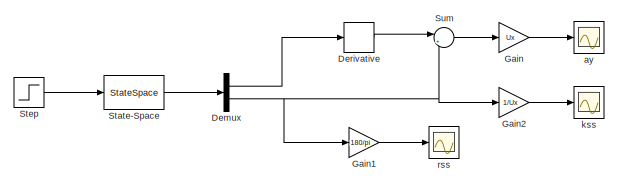
[diagram: root canvas - part 1/5, top left region]
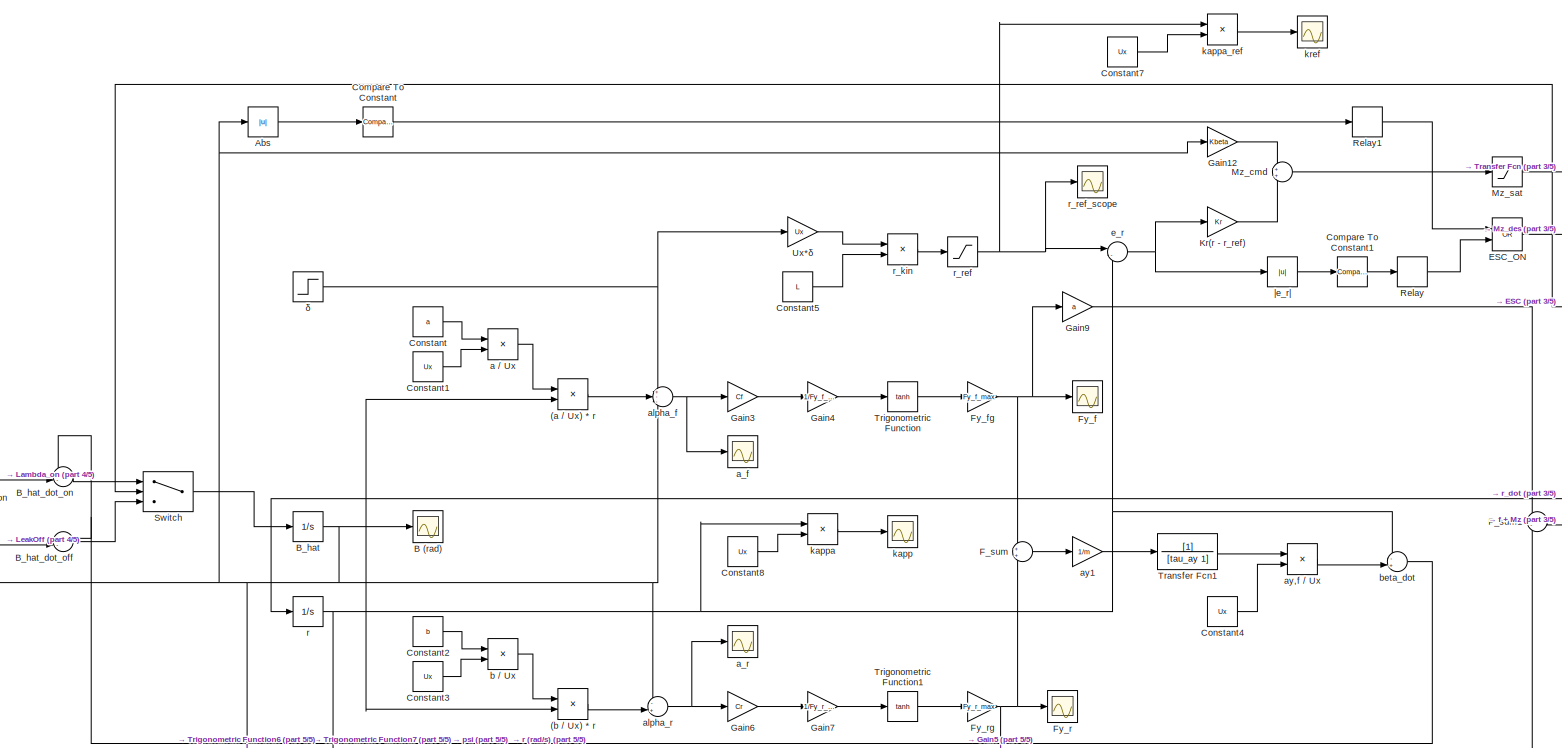
[diagram: root canvas - part 2/5, central region]
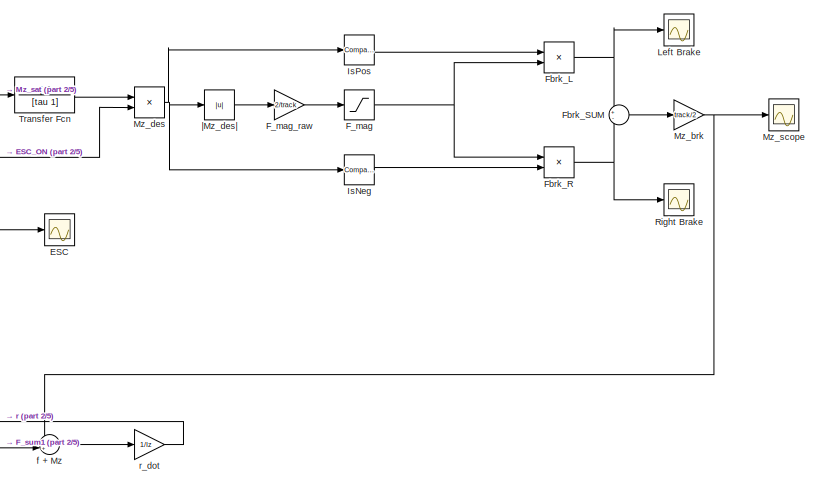
[diagram: root canvas - part 3/5, middle right region]
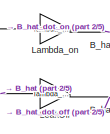
[diagram: root canvas - part 4/5, middle left region]
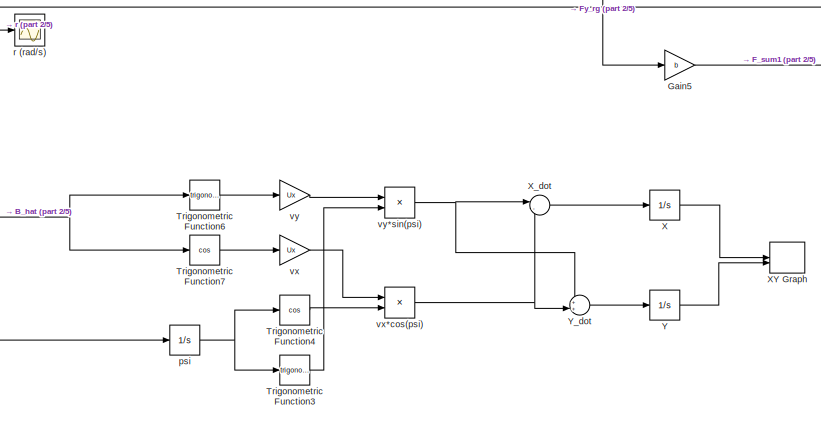
[diagram: root canvas - part 5/5, bottom center region]
MODEL slx_3f6d7fb1040c
KIND model
CONFIG AbsTol = auto
CONFIG EnableMultiTasking = off
CONFIG FixedStep = auto
CONFIG MaxStep = 0.001
CONFIG MinStep = auto
CONFIG RelTol = 1e-3
CONFIG SampleTimeConstraint = Unconstrained
CONFIG SolverName = VariableStepAuto
CONFIG StartTime = 0.0
CONFIG StopTime = 5
BLOCK [Product] (a // Ux) * r
BLOCK [Product] (b // Ux) * r
BLOCK [Abs] Abs
  SaturateOnIntegerOverflow = off
BLOCK [Scope] B (rad)
  ActiveDisplayYMaximum = 0.10009196576314162
  ActiveDisplayYMinimum = -0.86910030568136254
  DataLoggingVariableName = ScopeData10
  Floating = off
  GraphicalSettings = {"Style":{"BackgroundColor":[0.12941176470588237,0.12941176470588237,0.12941176470588237],"AxesColor":[0.07058823529411765,0.07058823529411765,0.07058823529411765],"LabelsColor":[0.8509803921568627,0.8509803921568627,0.8509803921568627],"PreserveColors":false,"Visible":[true],"LineStyle":["-"],"LineWidth":[1.5],"BarWidth":[0.9],"LineColor":["auto"],"LineFaceAlpha":[1],"LineEdgeAlpha":[1],"Marker":...<+1999ch>
  MultipleDisplayCache = [{"MaxYLimMag":0.86910030568136254,"MaxYLimReal":0.10009196576314162,"MinYLimMag":0,"MinYLimReal":-0.86910030568136254,"PlotAsMagnitudePhase":false,"ShowGrid":true,"ShowLegend":false,"Title":"%<SignalLabel>","YLabel":""}]
  NumInputPorts = 1
  ScopeFrameLocation = window
  WasSavedAsWebScope = on
  WindowPosition = [974.000000,227.000000,560.000000,420.000000,]
BLOCK [Integrator] B_hat
BLOCK [Sum] B_hat_dot_off
  Inputs = +-|
BLOCK [Sum] B_hat_dot_on 
  Inputs = +-|
BLOCK [Reference] Compare To Constant  REF=simulink/Logic and Bit
Operations/Compare
To Constant
  SourceBlock = simulink/Logic and Bit\nOperations/Compare\nTo Constant
  SourceType = Compare To Constant
BLOCK [Reference] Compare To Constant1  REF=simulink/Logic and Bit
Operations/Compare
To Constant
  SourceBlock = simulink/Logic and Bit\nOperations/Compare\nTo Constant
  SourceType = Compare To Constant
BLOCK [Constant] Constant
  Value = a
BLOCK [Constant] Constant1
  Value = Ux
BLOCK [Constant] Constant2
  Value = b
BLOCK [Constant] Constant3
  Value = Ux
BLOCK [Constant] Constant4
  Value = Ux
BLOCK [Constant] Constant5
  Value = L
BLOCK [Constant] Constant7
  Value = Ux
BLOCK [Constant] Constant8
  Value = Ux
BLOCK [Demux] Demux
  Outputs = 2
BLOCK [Derivative] Derivative
BLOCK [Scope] ESC
  ActiveDisplayYMaximum = 1.125
  ActiveDisplayYMinimum = -0.12499999999999997
  DataLoggingVariableName = ScopeData11
  Floating = off
  GraphicalSettings = {"Style":{"BackgroundColor":[0.12941176470588237,0.12941176470588237,0.12941176470588237],"AxesColor":[0.07058823529411765,0.07058823529411765,0.07058823529411765],"LabelsColor":[0.8509803921568627,0.8509803921568627,0.8509803921568627],"PreserveColors":false,"Visible":[true],"LineStyle":["-"],"LineWidth":[1.5],"BarWidth":[0.9],"LineColor":["auto"],"LineFaceAlpha":[1],"LineEdgeAlpha":[1],"Marker":...<+1947ch>
  MultipleDisplayCache = [{"MaxYLimMag":1.125,"MaxYLimReal":1.125,"MinYLimMag":0,"MinYLimReal":-0.12499999999999997,"PlotAsMagnitudePhase":false,"ShowGrid":true,"ShowLegend":false,"Title":"%<SignalLabel>","YLabel":""}]
  NumInputPorts = 1
  ScopeFrameLocation = window
  WasSavedAsWebScope = on
  WindowPosition = [974.000000,227.000000,560.000000,420.000000,]
BLOCK [Logic] ESC_ON
  AllPortsSameDT = off
  Operator = OR
  OutDataTypeStr = boolean
BLOCK [Saturate] F_mag
  LowerLimit = 0
  UpperLimit = Fbrk_max
BLOCK [Gain] F_mag_raw
  Gain = 2/track
BLOCK [Sum] F_sum
BLOCK [Sum] F_sum1
  Inputs = +-
BLOCK [Product] Fbrk_L
BLOCK [Product] Fbrk_R
BLOCK [Sum] Fbrk_SUM
  Inputs = +-
BLOCK [Scope] Fy_f
  ActiveDisplayYMaximum = 16426.364309320743
  ActiveDisplayYMinimum = 5460.5440620069958
  DataLoggingVariableName = ScopeData3
  Floating = off
  GraphicalSettings = {"Style":{"BackgroundColor":[0.12941176470588237,0.12941176470588237,0.12941176470588237],"AxesColor":[0.07058823529411765,0.07058823529411765,0.07058823529411765],"LabelsColor":[0.8509803921568627,0.8509803921568627,0.8509803921568627],"PreserveColors":false,"Visible":[true],"LineStyle":["-"],"LineWidth":[1.5],"BarWidth":[0.9],"LineColor":["auto"],"LineFaceAlpha":[1],"LineEdgeAlpha":[1],"Marker":...<+1989ch>  <repeated x3 — deduplicated; at blocks: Fy_f, Fy_r, rss>
  MultipleDisplayCache = [{"MaxYLimMag":4.883744972349735,"MaxYLimReal":16426.364309320743,"MinYLimMag":0,"MinYLimReal":5460.5440620069958,"PlotAsMagnitudePhase":false,"ShowGrid":true,"ShowLegend":false,"Title":"%<SignalLabel>","YLabel":""}]
  NumInputPorts = 1
  ScopeFrameLocation = window
  WasSavedAsWebScope = on
  WindowPosition = [974.000000,227.000000,560.000000,420.000000,]
BLOCK [Gain] Fy_fg
  Gain = Fy_f_max
BLOCK [Scope] Fy_r
  ActiveDisplayYMaximum = 827.49999999997237
  ActiveDisplayYMinimum = -7447.4999999997535
  DataLoggingVariableName = ScopeData4
  Floating = off
  MultipleDisplayCache = [{"MaxYLimMag":7447.4999999997535,"MaxYLimReal":827.49999999997237,"MinYLimMag":0,"MinYLimReal":-7447.4999999997535,"PlotAsMagnitudePhase":false,"ShowGrid":true,"ShowLegend":false,"Title":"%<SignalLabel>","YLabel":""}]
  NumInputPorts = 1
  ScopeFrameLocation = window
  WasSavedAsWebScope = on
  WindowPosition = [974.000000,227.000000,560.000000,420.000000,]
BLOCK [Gain] Fy_rg
  Gain = Fy_r_max
BLOCK [Gain] Gain
  Gain = Ux
BLOCK [Gain] Gain1
  Gain = 180/pi
BLOCK [Gain] Gain12
  Gain = Kbeta
BLOCK [Gain] Gain2
  Gain = 1/Ux
BLOCK [Gain] Gain3
  Gain = Cf
BLOCK [Gain] Gain4
  Gain = 1/Fy_f_max
BLOCK [Gain] Gain5
  Gain = b
BLOCK [Gain] Gain6
  Gain = Cr
BLOCK [Gain] Gain7
  Gain = 1/Fy_r_max
BLOCK [Gain] Gain9
  Gain = a
BLOCK [Reference] IsNeg  REF=simulink/Logic and Bit
Operations/Compare
To Zero
  SourceBlock = simulink/Logic and Bit\nOperations/Compare\nTo Zero
  SourceType = Compare To Zero
BLOCK [Reference] IsPos  REF=simulink/Logic and Bit
Operations/Compare
To Zero
  SourceBlock = simulink/Logic and Bit\nOperations/Compare\nTo Zero
  SourceType = Compare To Zero
BLOCK [Gain] Kr(r - r_ref)
  Gain = Kr
BLOCK [Gain] Lambda_on
  Gain = lambda_on
BLOCK [Gain] LeakOff
  Gain = lambda_off
BLOCK [Scope] Left Brake
  ActiveDisplayYMaximum = 3906.2834284379396
  ActiveDisplayYMinimum = -434.03149204865986
  DataLoggingVariableName = ScopeData8
  Floating = off
  GraphicalSettings = {"Style":{"BackgroundColor":[0.12941176470588237,0.12941176470588237,0.12941176470588237],"AxesColor":[0.07058823529411765,0.07058823529411765,0.07058823529411765],"LabelsColor":[0.8509803921568627,0.8509803921568627,0.8509803921568627],"PreserveColors":false,"Visible":[true],"LineStyle":["-"],"LineWidth":[1.5],"BarWidth":[0.9],"LineColor":["auto"],"LineFaceAlpha":[1],"LineEdgeAlpha":[1],"Marker":...<+1997ch>
  MultipleDisplayCache = [{"MaxYLimMag":3906.2834284379396,"MaxYLimReal":3906.2834284379396,"MinYLimMag":0,"MinYLimReal":-434.03149204865986,"PlotAsMagnitudePhase":false,"ShowGrid":true,"ShowLegend":false,"Title":"%<SignalLabel>","YLabel":""}]
  NumInputPorts = 1
  ScopeFrameLocation = window
  WasSavedAsWebScope = on
  WindowPosition = [974.000000,227.000000,560.000000,420.000000,]
BLOCK [Gain] Mz_brk
  Gain = track/2
BLOCK [Sum] Mz_cmd
BLOCK [Product] Mz_des
BLOCK [Saturate] Mz_sat
  LowerLimit = - Mz_max
  UpperLimit = Mz_max
BLOCK [Scope] Mz_scope
  ActiveDisplayYMaximum = 302.26878401950364
  ActiveDisplayYMinimum = -1725.2693218311676
  DataLoggingVariableName = ScopeData18
  Floating = off
  GraphicalSettings = {"Style":{"BackgroundColor":[0.12941176470588237,0.12941176470588237,0.12941176470588237],"AxesColor":[0.07058823529411765,0.07058823529411765,0.07058823529411765],"LabelsColor":[0.8509803921568627,0.8509803921568627,0.8509803921568627],"PreserveColors":false,"Visible":[true],"LineStyle":["-"],"LineWidth":[1.5],"BarWidth":[0.9],"LineColor":["auto"],"LineFaceAlpha":[1],"LineEdgeAlpha":[1],"Marker":...<+1995ch>
  MultipleDisplayCache = [{"MaxYLimMag":1725.2693218311676,"MaxYLimReal":302.26878401950364,"MinYLimMag":0,"MinYLimReal":-1725.2693218311676,"PlotAsMagnitudePhase":false,"ShowGrid":true,"ShowLegend":false,"Title":"%<SignalLabel>","YLabel":""}]
  NumInputPorts = 1
  ScopeFrameLocation = window
  WasSavedAsWebScope = on
  WindowPosition = [974.000000,227.000000,560.000000,420.000000,]
BLOCK [Relay] Relay
  OffSwitchValue = 0.08
  OnSwitchValue = 0.15
BLOCK [Relay] Relay1
  OffSwitchValue = 0.08
  OnSwitchValue = 0.15
BLOCK [Scope] Right Brake
  ActiveDisplayYMaximum = 4214.6224970189915
  ActiveDisplayYMinimum = -468.29138855766564
  DataLoggingVariableName = ScopeData14
  Floating = off
  GraphicalSettings = {"Style":{"BackgroundColor":[0.12941176470588237,0.12941176470588237,0.12941176470588237],"AxesColor":[0.07058823529411765,0.07058823529411765,0.07058823529411765],"LabelsColor":[0.8509803921568627,0.8509803921568627,0.8509803921568627],"PreserveColors":false,"Visible":[true],"LineStyle":["-"],"LineWidth":[1.5],"BarWidth":[0.9],"LineColor":["auto"],"LineFaceAlpha":[1],"LineEdgeAlpha":[1],"Marker":...<+1993ch>
  MultipleDisplayCache = [{"MaxYLimMag":4214.6224970189915,"MaxYLimReal":4214.6224970189915,"MinYLimMag":0,"MinYLimReal":-468.29138855766564,"PlotAsMagnitudePhase":false,"ShowGrid":true,"ShowLegend":false,"Title":"%<SignalLabel>","YLabel":""}]
  NumInputPorts = 1
  ScopeFrameLocation = window
  WasSavedAsWebScope = on
  WindowPosition = [974.000000,227.000000,560.000000,420.000000,]
BLOCK [StateSpace] State-Space
  A = A
  B = B
  C = C
  D = D
  InitialCondition = 0
BLOCK [Step] Step
  After = 2*pi/180
  SampleTime = 0
  Time = 0
BLOCK [Sum] Sum
  Inputs = |++
BLOCK [Switch] Switch
  InputSameDT = off
  SaturateOnIntegerOverflow = off
  Threshold = 0.5
BLOCK [TransferFcn] Transfer Fcn
  Denominator = [tau 1]
BLOCK [TransferFcn] Transfer Fcn1
  Denominator = [tau_ay 1]
BLOCK [Trigonometry] Trigonometric Function
  Operator = tanh
BLOCK [Trigonometry] Trigonometric Function1
  Operator = tanh
BLOCK [Trigonometry] Trigonometric Function3
BLOCK [Trigonometry] Trigonometric Function4
  Operator = cos
BLOCK [Trigonometry] Trigonometric Function6
BLOCK [Trigonometry] Trigonometric Function7
  Operator = cos
BLOCK [Gain] Ux*δ
  Gain = Ux
BLOCK [Integrator] X
BLOCK [Record] XY Graph
  CompatibilityTag = XY
  FileSettingsInternal = {"entries":[{"content":{"excelSettings":{"content":{},"type":"Streamout.ExcelSettings"},"parquetSettings":{"content":{},"type":"Streamout.ParquetSettings"}},"type":"Streamout.FileSettingStorage","uuid":""}],"packageUris":["http:\/\/schema.mathworks.com\/mf0\/streamout_blocks\/R2020a"],"version":"1.0"}
  FrameSettings = [0, 0]
  Layout = [1 1]
  NumPorts = 2.0
  SignalsInternal = {"entries":[{"content":{"signals":[{"content":{"blockPath":[],"dimensions":[1],"domain":"","lineColor":"#a2142f","plots":[ 1 ],"port":1,"sid":[""],"signalID":1,"signalName":"X"},"type":"RecordBlkView.Signal","uuid":""},{"content":{"blockPath":[],"dimensions":[1],"domain":"","lineColor":"#139fff","plots":[ 1 ],"port":2,"sid":[""],"signalID":2,"signalName":"Y"},"type":"RecordBlkView.Signal","uuid":"...<+148ch>
  VisualizationBindings = {"xyplotplugin":{"info":[{"series":[{"bindingParametersList":[{"parameter":"X-Axis","signalID":1,"signalName":"X"},{"parameter":"Y-Axis","signalID":2,"signalName":"Y"},{"parameter":"X-Axis","signalID":1,"signalName":"X"},{"parameter":"Y-Axis","signalID":2,"signalName":"Y"},{"parameter":"X-Axis","signalID":1,"signalName":"X"},{"parameter":"Y-Axis","signalID":2,"signalName":"Y"}],"seriesID":0}],"sub...<+13ch>
BLOCK [Sum] X_dot
  Inputs = |-+
  NameLocation = top
BLOCK [Integrator] Y
BLOCK [Sum] Y_dot
  Inputs = ++|
BLOCK [Product] a // Ux
  Inputs = */
BLOCK [Scope] a_f
  ActiveDisplayYMaximum = 0.62209344974925873
  ActiveDisplayYMinimum = 0.08601888353846722
  DataLoggingVariableName = ScopeData5
  Floating = off
  GraphicalSettings = {"Style":{"BackgroundColor":[0.12941176470588237,0.12941176470588237,0.12941176470588237],"AxesColor":[0.07058823529411765,0.07058823529411765,0.07058823529411765],"LabelsColor":[0.8509803921568627,0.8509803921568627,0.8509803921568627],"PreserveColors":false,"Visible":[true],"LineStyle":["-"],"LineWidth":[1.5],"BarWidth":[0.9],"LineColor":["auto"],"LineFaceAlpha":[1],"LineEdgeAlpha":[1],"Marker":...<+2035ch>
  MultipleDisplayCache = [{"MaxYLimMag":0.62209344974925873,"MaxYLimReal":0.62209344974925873,"MinYLimMag":0.08601888353846722,"MinYLimReal":0.08601888353846722,"PlotAsMagnitudePhase":false,"ShowGrid":true,"ShowLegend":false,"Title":"%<SignalLabel>","YLabel":""}]
  NumInputPorts = 1
  ScopeFrameLocation = window
  WasSavedAsWebScope = on
  WindowPosition = [974.000000,227.000000,560.000000,420.000000,]
BLOCK [Scope] a_r
  ActiveDisplayYMaximum = 0.48246710958971234
  ActiveDisplayYMinimum = -0.053607456621079137
  DataLoggingVariableName = ScopeData6
  Floating = off
  GraphicalSettings = {"Style":{"BackgroundColor":[0.12941176470588237,0.12941176470588237,0.12941176470588237],"AxesColor":[0.07058823529411765,0.07058823529411765,0.07058823529411765],"LabelsColor":[0.8509803921568627,0.8509803921568627,0.8509803921568627],"PreserveColors":false,"Visible":[true],"LineStyle":["-"],"LineWidth":[1.5],"BarWidth":[0.9],"LineColor":["auto"],"LineFaceAlpha":[1],"LineEdgeAlpha":[1],"Marker":...<+2007ch>
  MultipleDisplayCache = [{"MaxYLimMag":0.48246710958971234,"MaxYLimReal":0.48246710958971234,"MinYLimMag":0,"MinYLimReal":-0.053607456621079137,"PlotAsMagnitudePhase":false,"ShowGrid":true,"ShowLegend":false,"Title":"%<SignalLabel>","YLabel":""}]
  NumInputPorts = 1
  ScopeFrameLocation = window
  WasSavedAsWebScope = on
  WindowPosition = [974.000000,227.000000,560.000000,420.000000,]
BLOCK [Sum] alpha_f
  Inputs = +--
BLOCK [Sum] alpha_r
  Inputs = -+|
BLOCK [Scope] ay
  ActiveDisplayYMaximum = 9.72895135835865
  ActiveDisplayYMinimum = -9.5654915450519589
  Floating = off
  GraphicalSettings = {"Style":{"BackgroundColor":[0.12941176470588237,0.12941176470588237,0.12941176470588237],"AxesColor":[0.07058823529411765,0.07058823529411765,0.07058823529411765],"LabelsColor":[0.8509803921568627,0.8509803921568627,0.8509803921568627],"PreserveColors":false,"Visible":[true],"LineStyle":["-"],"LineWidth":[1.5],"BarWidth":[0.9],"LineColor":["auto"],"LineFaceAlpha":[1],"LineEdgeAlpha":[1],"Marker":...<+1985ch>
  MultipleDisplayCache = [{"MaxYLimMag":4.883744972349735,"MaxYLimReal":9.72895135835865,"MinYLimMag":0,"MinYLimReal":-9.5654915450519589,"PlotAsMagnitudePhase":false,"ShowGrid":true,"ShowLegend":false,"Title":"%<SignalLabel>","YLabel":""}]
  NumInputPorts = 1
  ScopeFrameLocation = window
  WasSavedAsWebScope = on
  WindowPosition = [974.000000,227.000000,560.000000,420.000000,]
BLOCK [Product] ay,f // Ux
  Inputs = */
BLOCK [Gain] ay1
  Gain = 1/m
BLOCK [Product] b // Ux
  Inputs = */
BLOCK [Sum] beta_dot
  Inputs = -+|
BLOCK [Sum] e_r
  Inputs = |-+
BLOCK [Sum] f + Mz
  Inputs = ++|
BLOCK [Scope] kapp
  ActiveDisplayYMaximum = 0.037446878896168954
  ActiveDisplayYMinimum = -0.0041607643217965494
  ContainerLayout = {"WindowBounds":[213.33333333333326,149.33333333333326,1280,768]}
  DataLoggingVariableName = ScopeData7
  Floating = off
  GraphicalSettings = {"Style":{"BackgroundColor":[0.12941176470588237,0.12941176470588237,0.12941176470588237],"AxesColor":[0.07058823529411765,0.07058823529411765,0.07058823529411765],"LabelsColor":[0.8509803921568627,0.8509803921568627,0.8509803921568627],"PreserveColors":false,"Visible":[true],"LineStyle":["-"],"LineWidth":[1.5],"BarWidth":[0.9],"LineColor":["auto"],"LineFaceAlpha":[1],"LineEdgeAlpha":[1],"Marker":...<+2007ch>
  MultipleDisplayCache = [{"MaxYLimMag":0.037446878896168954,"MaxYLimReal":0.037446878896168954,"MinYLimMag":0,"MinYLimReal":-0.0041607643217965494,"PlotAsMagnitudePhase":false,"ShowGrid":true,"ShowLegend":false,"Title":"%<SignalLabel>","YLabel":""}]
  NumInputPorts = 1
  ScopeFrameLocation = container
  WasSavedAsWebScope = on
  WindowPosition = [213.000000,149.000000,1280.000000,768.000000,]
BLOCK [Product] kappa
  Inputs = */
BLOCK [Product] kappa_ref
  Inputs = */
BLOCK [Scope] kref
  ActiveDisplayYMaximum = -0.012072500000000002
  ActiveDisplayYMinimum = -0.032072500000000004
  ContainerLayout = {"WindowBounds":[213.33333333333326,149.33333333333326,1280,768]}
  DataLoggingVariableName = ScopeData9
  Floating = off
  GraphicalSettings = {"Style":{"BackgroundColor":[0.12941176470588237,0.12941176470588237,0.12941176470588237],"AxesColor":[0.07058823529411765,0.07058823529411765,0.07058823529411765],"LabelsColor":[0.8509803921568627,0.8509803921568627,0.8509803921568627],"PreserveColors":false,"Visible":[true],"LineStyle":["-"],"LineWidth":[1.5],"BarWidth":[0.9],"LineColor":["auto"],"LineFaceAlpha":[1],"LineEdgeAlpha":[1],"Marker":...<+2017ch>
  MultipleDisplayCache = [{"MaxYLimMag":0.032072500000000004,"MaxYLimReal":-0.012072500000000002,"MinYLimMag":0,"MinYLimReal":-0.032072500000000004,"PlotAsMagnitudePhase":false,"ShowGrid":true,"ShowLegend":false,"Title":"%<SignalLabel>","YLabel":""}]
  NumInputPorts = 1
  ScopeFrameLocation = container
  WasSavedAsWebScope = on
  WindowPosition = [213.000000,149.000000,1280.000000,768.000000,]
BLOCK [Scope] kss
  ActiveDisplayYMaximum = 0.048594343159297
  ActiveDisplayYMinimum = -0.033107291847622476
  DataLoggingVariableName = ScopeData2
  Floating = off
  GraphicalSettings = {"AxesScalingProperties":{"AlignXAxis":"Center","AlignYAxis":"Center","AutoScaleXAxisLimits":false,"AxesScaling":"Manual","AxesScalingNumUpdates":10,"ExpandOnly":true,"ScaleAxesLimitsAtStop":false,"XAxisDataRange":100,"YAxisDataRange":80},"DisplayProperties":{"ColorOrder":["auto","auto","auto","auto","auto","auto","auto","auto","auto","auto","auto","auto","auto","auto","auto","auto","auto","auto",...<+2008ch>
  MultipleDisplayCache = [{"MaxYLimMag":4.883744972349735,"MaxYLimReal":0.048594343159297,"MinYLimMag":0,"MinYLimReal":-0.033107291847622476,"PlotAsMagnitudePhase":false,"ShowGrid":true,"ShowLegend":false,"Title":"%<SignalLabel>","YLabel":""}]
  NumInputPorts = 1
  ScopeFrameLocation = window
  WasSavedAsWebScope = on
  WindowPosition = [974.000000,227.000000,560.000000,420.000000,]
BLOCK [Integrator] psi
BLOCK [Integrator] r
BLOCK [Scope] r (rad//s)
  ActiveDisplayYMaximum = 0.74893757792337912
  ActiveDisplayYMinimum = -0.083215286435931
  ContainerLayout = {"WindowBounds":[213.33333333333326,149.33333333333326,1280,768]}
  DataLoggingVariableName = ScopeData13
  Floating = off
  GraphicalSettings = {"Style":{"BackgroundColor":[0.12941176470588237,0.12941176470588237,0.12941176470588237],"AxesColor":[0.07058823529411765,0.07058823529411765,0.07058823529411765],"LabelsColor":[0.8509803921568627,0.8509803921568627,0.8509803921568627],"PreserveColors":false,"Visible":[true],"LineStyle":["-"],"LineWidth":[1.5],"BarWidth":[0.9],"LineColor":["auto"],"LineFaceAlpha":[1],"LineEdgeAlpha":[1],"Marker":...<+1985ch>
  MultipleDisplayCache = [{"MaxYLimMag":0.74893757792337912,"MaxYLimReal":0.74893757792337912,"MinYLimMag":0,"MinYLimReal":-0.083215286435931,"PlotAsMagnitudePhase":false,"ShowGrid":true,"ShowLegend":false,"Title":"%<SignalLabel>","YLabel":""}]
  NumInputPorts = 1
  ScopeFrameLocation = container
  Visible = on
  WasSavedAsWebScope = on
  WindowPosition = [213.000000,149.000000,1280.000000,768.000000,]
BLOCK [Gain] r_dot
  Gain = 1/Iz
BLOCK [Product] r_kin
  Inputs = */
BLOCK [Saturate] r_ref
  LowerLimit = - r_fric
  UpperLimit = r_fric
BLOCK [Scope] r_ref_scope
  ActiveDisplayYMaximum = 0.54145
  ActiveDisplayYMinimum = 0.34145000000000003
  DataLoggingVariableName = ScopeData15
  Floating = off
  GraphicalSettings = {"Style":{"BackgroundColor":[0.12941176470588237,0.12941176470588237,0.12941176470588237],"AxesColor":[0.07058823529411765,0.07058823529411765,0.07058823529411765],"LabelsColor":[0.8509803921568627,0.8509803921568627,0.8509803921568627],"PreserveColors":false,"Visible":[true],"LineStyle":["-"],"LineWidth":[1.5],"BarWidth":[0.9],"LineColor":["auto"],"LineFaceAlpha":[1],"LineEdgeAlpha":[1],"Marker":...<+1987ch>
  MultipleDisplayCache = [{"MaxYLimMag":0.54145,"MaxYLimReal":0.54145,"MinYLimMag":0.34145000000000003,"MinYLimReal":0.34145000000000003,"PlotAsMagnitudePhase":false,"ShowGrid":true,"ShowLegend":false,"Title":"%<SignalLabel>","YLabel":""}]
  NumInputPorts = 1
  ScopeFrameLocation = window
  WasSavedAsWebScope = on
  WindowPosition = [974.000000,227.000000,560.000000,420.000000,]
BLOCK [Scope] rss
  ActiveDisplayYMaximum = 13.63504359290544
  ActiveDisplayYMinimum = -8.3829563783730769
  DataLoggingVariableName = ScopeData1
  Floating = off
  MultipleDisplayCache = [{"MaxYLimMag":14.083003355753791,"MaxYLimReal":13.63504359290544,"MinYLimMag":0,"MinYLimReal":-8.3829563783730769,"PlotAsMagnitudePhase":false,"ShowGrid":true,"ShowLegend":false,"Title":"%<SignalLabel>","YLabel":""}]
  NumInputPorts = 1
  ScopeFrameLocation = window
  WasSavedAsWebScope = on
  WindowPosition = [996.000000,56.000000,560.000000,420.000000,]
BLOCK [Gain] vx
  Gain = Ux
BLOCK [Product] vx*cos(psi)
BLOCK [Gain] vy
  Gain = Ux
BLOCK [Product] vy*sin(psi)
BLOCK [Abs] |Mz_des|
  SaturateOnIntegerOverflow = off
BLOCK [Abs] |e_r|
  SaturateOnIntegerOverflow = off
BLOCK [Step] δ
  After = 8*pi/180
  SampleTime = 0
  Time = 0
LINE (a // Ux) * r:1 -> alpha_f:2
LINE (b // Ux) * r:1 -> alpha_r:2
LINE Abs:1 -> Compare To Constant:1
NET B_hat:1 -> Abs:1, B (rad):1, Gain12:1, Lambda_on:1, LeakOff:1, Trigonometric Function6:1, Trigonometric Function7:1, alpha_f:3, alpha_r:1
LINE B_hat_dot_off:1 -> Switch:3
LINE B_hat_dot_on :1 -> Switch:1
LINE Compare To Constant1:1 -> Relay:1
LINE Compare To Constant:1 -> Relay1:1
LINE Constant1:1 -> a // Ux:2
LINE Constant2:1 -> b // Ux:1
LINE Constant3:1 -> b // Ux:2
LINE Constant4:1 -> ay,f // Ux:2
LINE Constant5:1 -> r_kin:2
LINE Constant7:1 -> kappa_ref:2
LINE Constant8:1 -> kappa:2
LINE Constant:1 -> a // Ux:1
LINE Demux:1 -> Derivative:1
NET Demux:2 -> Gain1:1, Gain2:1, Sum:2
LINE Derivative:1 -> Sum:1
NET ESC_ON:1 -> ESC:1, Mz_des:2, Switch:2
NET F_mag:1 -> Fbrk_L:2, Fbrk_R:1
LINE F_mag_raw:1 -> F_mag:1
LINE F_sum1:1 -> f + Mz:2
LINE F_sum:1 -> ay1:1
NET Fbrk_L:1 -> Fbrk_SUM:1, Left Brake:1
NET Fbrk_R:1 -> Fbrk_SUM:2, Right Brake:1
LINE Fbrk_SUM:1 -> Mz_brk:1
NET Fy_fg:1 -> F_sum:1, Fy_f:1, Gain9:1
NET Fy_rg:1 -> F_sum:2, Fy_r:1, Gain5:1
LINE Gain12:1 -> Mz_cmd:1
LINE Gain1:1 -> rss:1
LINE Gain2:1 -> kss:1
LINE Gain3:1 -> Gain4:1
LINE Gain4:1 -> Trigonometric Function:1
LINE Gain5:1 -> F_sum1:2
LINE Gain6:1 -> Gain7:1
LINE Gain7:1 -> Trigonometric Function1:1
LINE Gain9:1 -> F_sum1:1
LINE Gain:1 -> ay:1
LINE IsNeg:1 -> Fbrk_R:2
LINE IsPos:1 -> Fbrk_L:1
LINE Kr(r - r_ref):1 -> Mz_cmd:2
LINE Lambda_on:1 -> B_hat_dot_on :2
LINE LeakOff:1 -> B_hat_dot_off:2
NET Mz_brk:1 -> Mz_scope:1, f + Mz:1
LINE Mz_cmd:1 -> Mz_sat:1
NET Mz_des:1 -> IsNeg:1, IsPos:1, |Mz_des|:1
LINE Mz_sat:1 -> Transfer Fcn:1
LINE Relay1:1 -> ESC_ON:1
LINE Relay:1 -> ESC_ON:2
LINE State-Space:1 -> Demux:1
LINE Step:1 -> State-Space:1
LINE Sum:1 -> Gain:1
LINE Switch:1 -> B_hat:1
LINE Transfer Fcn1:1 -> ay,f // Ux:1
LINE Transfer Fcn:1 -> Mz_des:1
LINE Trigonometric Function1:1 -> Fy_rg:1
LINE Trigonometric Function3:1 -> vy*sin(psi):2
LINE Trigonometric Function4:1 -> vx*cos(psi):2
LINE Trigonometric Function6:1 -> vy:1
LINE Trigonometric Function7:1 -> vx:1
LINE Trigonometric Function:1 -> Fy_fg:1
LINE Ux*δ:1 -> r_kin:1
LINE X:1 -> XY Graph:1
LINE X_dot:1 -> X:1
LINE Y:1 -> XY Graph:2
LINE Y_dot:1 -> Y:1
LINE a // Ux:1 -> (a // Ux) * r:1
NET alpha_f:1 -> Gain3:1, a_f:1
NET alpha_r:1 -> Gain6:1, a_r:1
LINE ay,f // Ux:1 -> beta_dot:2
LINE ay1:1 -> Transfer Fcn1:1
LINE b // Ux:1 -> (b // Ux) * r:1
NET beta_dot:1 -> B_hat_dot_off:1, B_hat_dot_on :1
NET e_r:1 -> Kr(r - r_ref):1, |e_r|:1
LINE f + Mz:1 -> r_dot:1
LINE kappa:1 -> kapp:1
LINE kappa_ref:1 -> kref:1
NET psi:1 -> Trigonometric Function3:1, Trigonometric Function4:1
NET r:1 -> (a // Ux) * r:2, (b // Ux) * r:2, beta_dot:1, e_r:2, kappa:1, psi:1, r (rad//s):1
LINE r_dot:1 -> r:1
LINE r_kin:1 -> r_ref:1
NET r_ref:1 -> e_r:1, kappa_ref:1, r_ref_scope:1
NET vx*cos(psi):1 -> X_dot:2, Y_dot:2
LINE vx:1 -> vx*cos(psi):1
NET vy*sin(psi):1 -> X_dot:1, Y_dot:1
LINE vy:1 -> vy*sin(psi):1
LINE |Mz_des|:1 -> F_mag_raw:1
LINE |e_r|:1 -> Compare To Constant1:1
NET δ:1 -> Ux*δ:1, alpha_f:1
note: NET lines group one-source signal fan-out (src -> all destinations, sorted); 1:1 wires keep LINE
